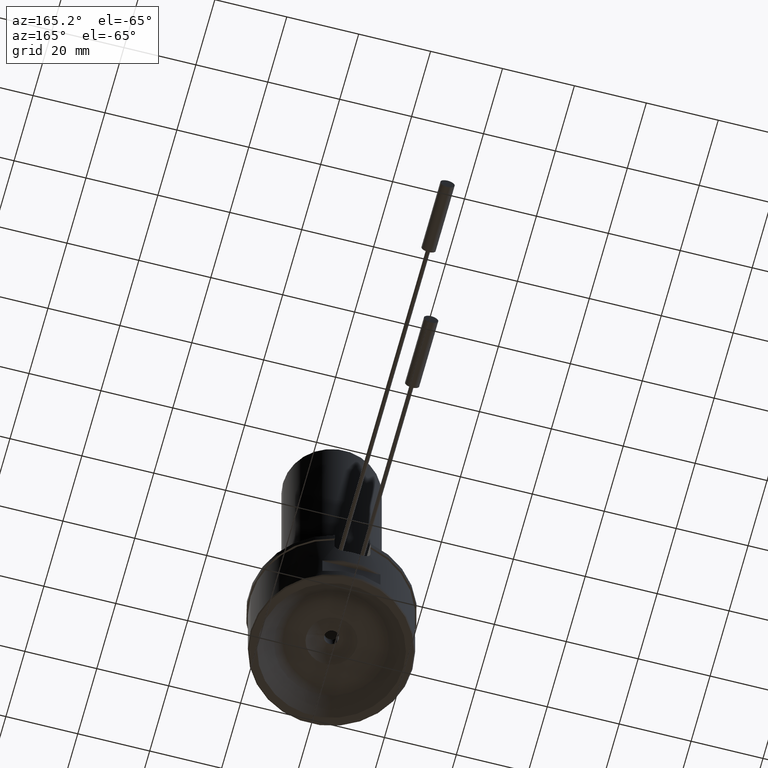
[diagram: clean part render]
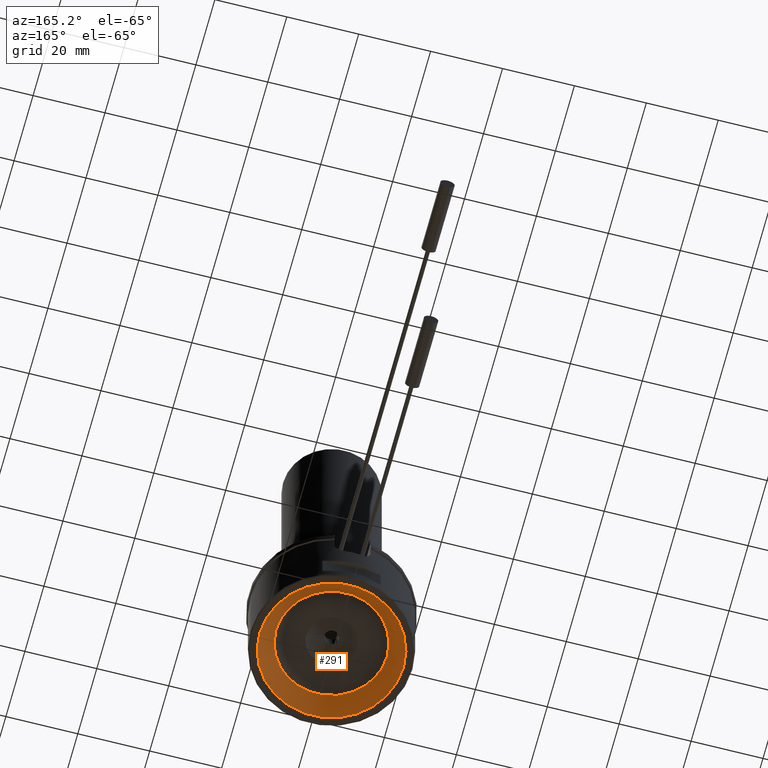
[diagram: same view with one face highlighted and labeled with its STEP entity id]
A machine part, auxiliary view. The second image highlights one B-rep face of the part: STEP entity #291.
In plain terms, the highlighted conical surface has half-angle 45 deg.
Its self-contained STEP definition (entity closure, byte-faithful):
#121=CONICAL_SURFACE('',#1172,14.0000000000001,44.9999999999999);
#291=ADVANCED_FACE('',(#381,#382),#121,.F.);
#381=FACE_BOUND('',#460,.T.);
#382=FACE_BOUND('',#461,.T.);
#460=EDGE_LOOP('',(#629));
#461=EDGE_LOOP('',(#630));
#629=ORIENTED_EDGE('',*,*,#973,.T.);
#630=ORIENTED_EDGE('',*,*,#972,.F.);
#864=VERTEX_POINT('',#1882);
#865=VERTEX_POINT('',#1885);
#972=EDGE_CURVE('',#864,#864,#1062,.T.);
#973=EDGE_CURVE('',#865,#865,#1063,.T.);
#1062=CIRCLE('',#1169,20.);
#1063=CIRCLE('',#1171,15.4644660940673);
#1169=AXIS2_PLACEMENT_3D('',#1881,#1402,#1403);
#1171=AXIS2_PLACEMENT_3D('',#1884,#1406,#1407);
#1172=AXIS2_PLACEMENT_3D('',#1886,#1408,#1409);
#1402=DIRECTION('',(0.,0.,1.));
#1403=DIRECTION('',(1.,0.,0.));
#1406=DIRECTION('',(0.,0.,1.));
#1407=DIRECTION('',(-1.,0.,0.));
#1408=DIRECTION('',(0.,0.,-1.));
#1409=DIRECTION('',(-1.,0.,3.25046805163309E-17));
#1881=CARTESIAN_POINT('',(0.,0.,6.07153216591882E-15));
#1882=CARTESIAN_POINT('',(20.,0.,6.07153216591882E-15));
#1884=CARTESIAN_POINT('',(0.,0.,4.5355339059327));
#1885=CARTESIAN_POINT('',(-15.4644660940673,0.,4.5355339059327));
#1886=CARTESIAN_POINT('',(0.,0.,5.99999999999997));